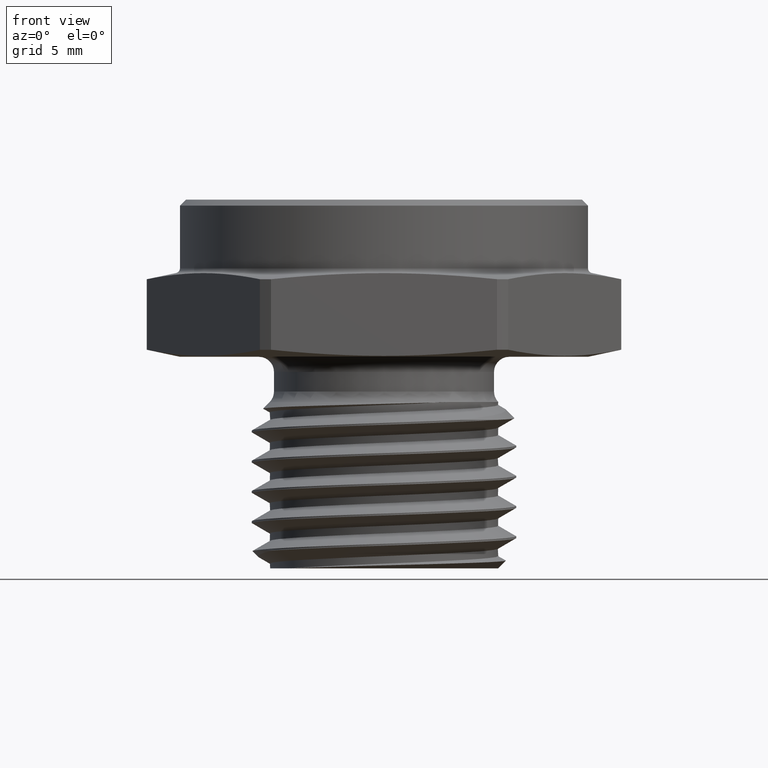
[diagram: clean part render]
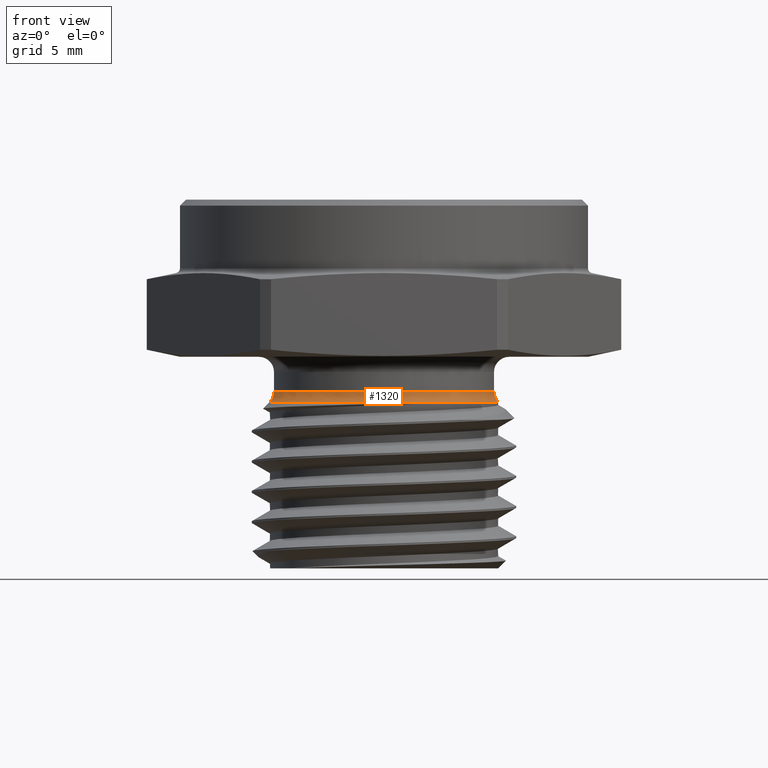
[diagram: same view with one face highlighted and labeled with its STEP entity id]
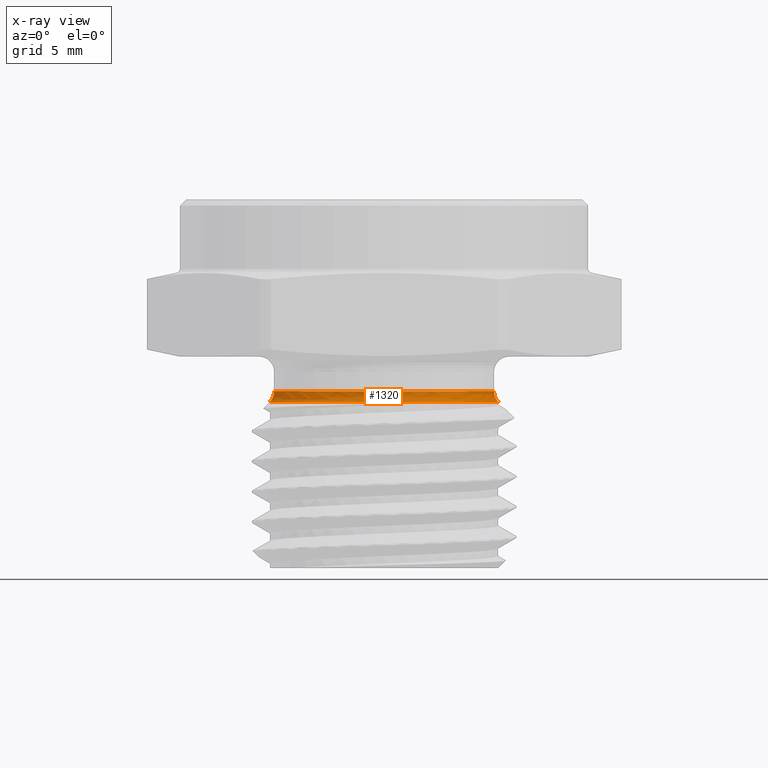
[diagram: x-ray of the same camera — body ghosted, the highlighted face saturated]
A machine part, front view. The second image highlights one B-rep face of the part: STEP entity #1320.
The next image is the same camera in x-ray: the body ghosted, the highlighted face saturated — about 0% of this face is hidden behind the body in this view.
In plain terms, the highlighted toroidal blend (fillet) surface has major radius 5.2578 mm and minor (blend) radius 0.635 mm.
Its self-contained STEP definition (entity closure, byte-faithful):
#86 = ORIENTED_EDGE ( 'NONE', *, *, #246, .F. ) ;
#87 = ORIENTED_EDGE ( 'NONE', *, *, #245, .T. ) ;
#88 = ORIENTED_EDGE ( 'NONE', *, *, #244, .T. ) ;
#89 = ORIENTED_EDGE ( 'NONE', *, *, #243, .F. ) ;
#90 = ORIENTED_EDGE ( 'NONE', *, *, #242, .F. ) ;
#109 = B_SPLINE_CURVE_WITH_KNOTS ( 'NONE', 3,
 ( #889, #890, #895, #896, #897, #898, #899, #900, #901, #902, #903, #904, #905, #906 ),
 .UNSPECIFIED., .F., .F.,
 ( 4, 2, 2, 2, 2, 2, 4 ),
 ( 0.003016735257506116200, 0.003588069579440048200, 0.004159403901373979700, 0.005302072545241843500, 0.005873406867175775900, 0.006444741189109708300, 0.007587409832977575600 ),
 .UNSPECIFIED. ) ;
#110 = B_SPLINE_CURVE_WITH_KNOTS ( 'NONE', 3,
 ( #882, #894, #907, #908 ),
 .UNSPECIFIED., .F., .F.,
 ( 4, 4 ),
 ( 6.133173666733496700E-019, 0.0003090530236504838600 ),
 .UNSPECIFIED. ) ;
#241 = EDGE_CURVE ( 'NONE', #2322, #349, #2839, .T. ) ;
#242 = EDGE_CURVE ( 'NONE', #349, #362, #109, .T. ) ;
#243 = EDGE_CURVE ( 'NONE', #362, #1659, #110, .T. ) ;
#244 = EDGE_CURVE ( 'NONE', #1643, #1659, #2833, .T. ) ;
#245 = EDGE_CURVE ( 'NONE', #348, #1643, #2835, .T. ) ;
#246 = EDGE_CURVE ( 'NONE', #348, #2322, #2841, .T. ) ;
#348 = VERTEX_POINT ( 'NONE', #1015 ) ;
#349 = VERTEX_POINT ( 'NONE', #1016 ) ;
#362 = VERTEX_POINT ( 'NONE', #1026 ) ;
#425 = AXIS2_PLACEMENT_3D ( 'NONE', #891, #892, #893 ) ;
#426 = AXIS2_PLACEMENT_3D ( 'NONE', #910, #911, #912 ) ;
#427 = AXIS2_PLACEMENT_3D ( 'NONE', #914, #915, #916 ) ;
#428 = AXIS2_PLACEMENT_3D ( 'NONE', #919, #920, #921 ) ;
#493 = AXIS2_PLACEMENT_3D ( 'NONE', #1507, #1506, #1509 ) ;
#882 = CARTESIAN_POINT ( 'NONE',  ( 0.1105743227118935100, -0.1532785671801704700, -0.07467168204323367000 ) ) ;
#889 = CARTESIAN_POINT ( 'NONE',  ( 0.1889999999999999500, -5.077847802855015500E-016, -0.07467168204323376700 ) ) ;
#890 = CARTESIAN_POINT ( 'NONE',  ( 0.1889999999999999500, -0.007408398856518986900, -0.07467168204323369800 ) ) ;
#891 = CARTESIAN_POINT ( 'NONE',  ( 0.2070000000000000200, 0.0000000000000000000, -0.05732233047033625400 ) ) ;
#892 = DIRECTION ( 'NONE',  ( 0.0000000000000000000, -1.000000000000000000, 0.0000000000000000000 ) ) ;
#893 = DIRECTION ( 'NONE',  ( 0.0000000000000000000, 0.0000000000000000000, -1.000000000000000000 ) ) ;
#894 = CARTESIAN_POINT ( 'NONE',  ( 0.1073491188592001300, -0.1557353333065056600, -0.07478116800758433100 ) ) ;
#895 = CARTESIAN_POINT ( 'NONE',  ( 0.1885659338144757800, -0.01481081737293623300, -0.07467168204323428000 ) ) ;
#896 = CARTESIAN_POINT ( 'NONE',  ( 0.1868156964022447100, -0.02960350121732353500, -0.07467168204323429400 ) ) ;
#897 = CARTESIAN_POINT ( 'NONE',  ( 0.1854856435358789900, -0.03703616413661496600, -0.07467168204323378100 ) ) ;
#898 = CARTESIAN_POINT ( 'NONE',  ( 0.1802440767859989100, -0.05878331762546922000, -0.07467168204323378100 ) ) ;
#899 = CARTESIAN_POINT ( 'NONE',  ( 0.1751044017475008000, -0.07267870259491375500, -0.07467168204323367000 ) ) ;
#900 = CARTESIAN_POINT ( 'NONE',  ( 0.1649212873710765600, -0.09261563206297471200, -0.07467168204323369800 ) ) ;
#901 = CARTESIAN_POINT ( 'NONE',  ( 0.1610944003170355600, -0.09912110661881151600, -0.07467168204323400300 ) ) ;
#902 = CARTESIAN_POINT ( 'NONE',  ( 0.1528005199266922700, -0.1114827372330605400, -0.07467168204323400300 ) ) ;
#903 = CARTESIAN_POINT ( 'NONE',  ( 0.1483136309802378400, -0.1173838283984034000, -0.07467168204323372500 ) ) ;
#904 = CARTESIAN_POINT ( 'NONE',  ( 0.1338469839122427600, -0.1342593390182885400, -0.07467168204323371100 ) ) ;
#905 = CARTESIAN_POINT ( 'NONE',  ( 0.1227625656102303600, -0.1444860352015872600, -0.07467168204323392000 ) ) ;
#906 = CARTESIAN_POINT ( 'NONE',  ( 0.1105743227118935100, -0.1532785671801704700, -0.07467168204323367000 ) ) ;
#907 = CARTESIAN_POINT ( 'NONE',  ( 0.1040443805129203100, -0.1580910372631408000, -0.07489073311378939600 ) ) ;
#908 = CARTESIAN_POINT ( 'NONE',  ( 0.1006700736298655200, -0.1603386450300489400, -0.07499999999997857000 ) ) ;
#910 = CARTESIAN_POINT ( 'NONE',  ( 0.0000000000000000000, 0.0000000000000000000, -0.07499999999999998300 ) ) ;
#911 = DIRECTION ( 'NONE',  ( -0.0000000000000000000, -0.0000000000000000000, 1.000000000000000000 ) ) ;
#912 = DIRECTION ( 'NONE',  ( 1.000000000000000000, 0.0000000000000000000, 0.0000000000000000000 ) ) ;
#914 = CARTESIAN_POINT ( 'NONE',  ( -0.2070000000000000200, 2.535018874235021400E-017, -0.05732233047033625400 ) ) ;
#915 = DIRECTION ( 'NONE',  ( 1.224646799147353200E-016, 1.000000000000000000, 0.0000000000000000000 ) ) ;
#916 = DIRECTION ( 'NONE',  ( -1.000000000000000000, 1.224646799147351700E-016, 0.0000000000000000000 ) ) ;
#919 = CARTESIAN_POINT ( 'NONE',  ( 0.0000000000000000000, 0.0000000000000000000, -0.05732233047033625400 ) ) ;
#920 = DIRECTION ( 'NONE',  ( -0.0000000000000000000, -0.0000000000000000000, 1.000000000000000000 ) ) ;
#921 = DIRECTION ( 'NONE',  ( 1.000000000000000000, 0.0000000000000000000, 0.0000000000000000000 ) ) ;
#1015 = CARTESIAN_POINT ( 'NONE',  ( -0.1820000000000000000, 2.273693517312165900E-017, -0.05732233047033625400 ) ) ;
#1016 = CARTESIAN_POINT ( 'NONE',  ( 0.1889999999999999500, -5.077847802855015500E-016, -0.07467168204323376700 ) ) ;
#1026 = CARTESIAN_POINT ( 'NONE',  ( 0.1105743227118935100, -0.1532785671801704700, -0.07467168204323367000 ) ) ;
#1320 = ADVANCED_FACE ( 'NONE', ( #2965 ), #2959, .F. ) ;
#1506 = DIRECTION ( 'NONE',  ( -0.0000000000000000000, -0.0000000000000000000, 1.000000000000000000 ) ) ;
#1507 = CARTESIAN_POINT ( 'NONE',  ( 0.0000000000000000000, 0.0000000000000000000, -0.05732233047033625400 ) ) ;
#1509 = DIRECTION ( 'NONE',  ( 1.000000000000000000, 0.0000000000000000000, 0.0000000000000000000 ) ) ;
#1525 = CARTESIAN_POINT ( 'NONE',  ( -0.1893223304703363600, 0.0000000000000000000, -0.07499999999999998300 ) ) ;
#1548 = CARTESIAN_POINT ( 'NONE',  ( 0.1006700736298655200, -0.1603386450300489400, -0.07499999999997857000 ) ) ;
#1566 = CARTESIAN_POINT ( 'NONE',  ( 0.1820000000000000000, 0.0000000000000000000, -0.05732233047033625400 ) ) ;
#1643 = VERTEX_POINT ( 'NONE', #1525 ) ;
#1659 = VERTEX_POINT ( 'NONE', #1548 ) ;
#2322 = VERTEX_POINT ( 'NONE', #1566 ) ;
#2712 = EDGE_LOOP ( 'NONE', ( #86, #87, #88, #89, #90, #2995 ) ) ;
#2833 = CIRCLE ( 'NONE', #426, 0.1893223304703363600 ) ;
#2835 = CIRCLE ( 'NONE', #427, 0.02500000000000000500 ) ;
#2839 = CIRCLE ( 'NONE', #425, 0.02499999999999999100 ) ;
#2841 = CIRCLE ( 'NONE', #428, 0.1820000000000000000 ) ;
#2959 = TOROIDAL_SURFACE ( 'NONE', #493, 0.2070000000000000200, 0.02499999999999999100 ) ;
#2965 = FACE_OUTER_BOUND ( 'NONE', #2712, .T. ) ;
#2995 = ORIENTED_EDGE ( 'NONE', *, *, #241, .F. ) ;